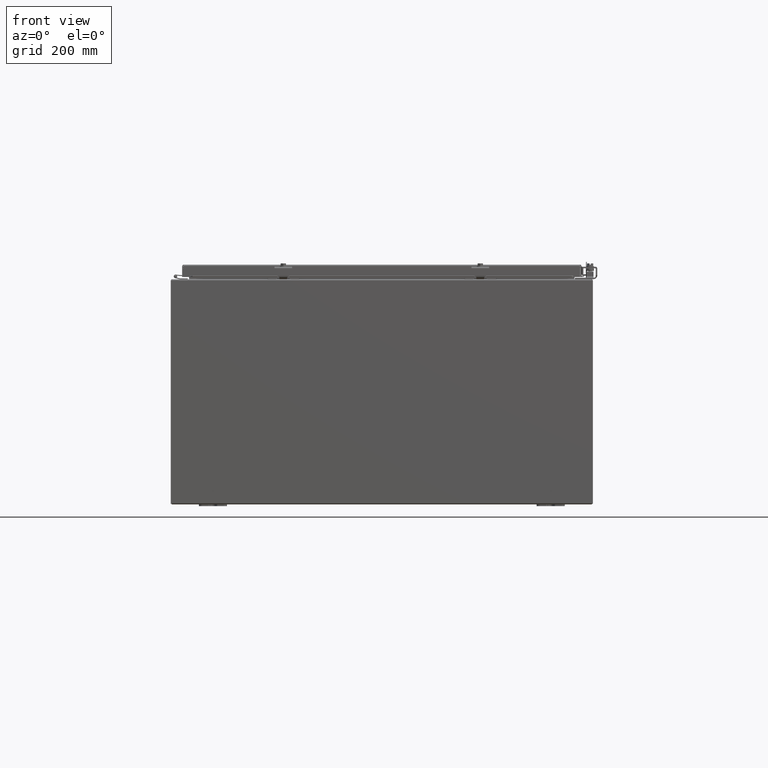
[diagram: clean part render]
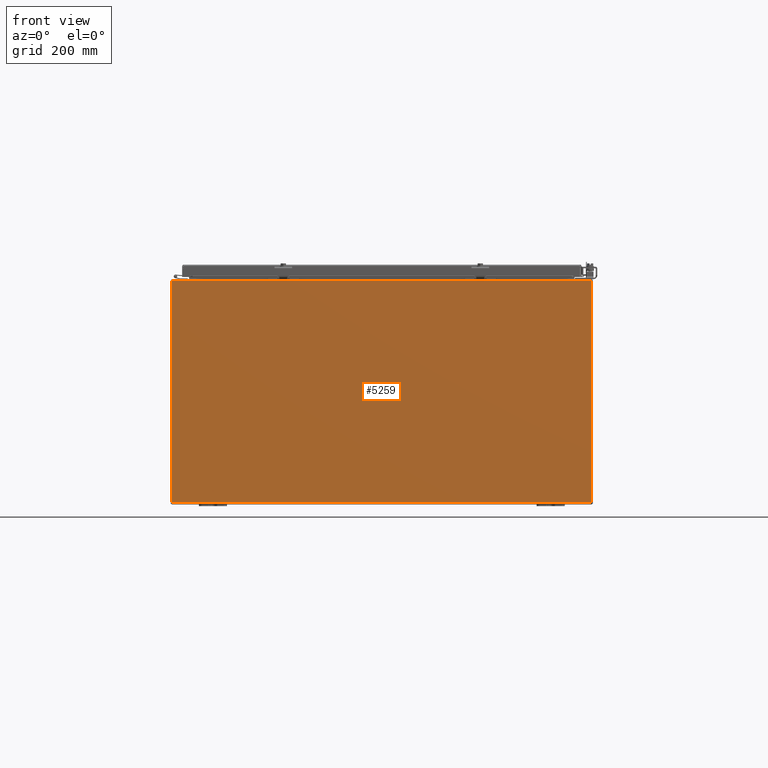
[diagram: same view with one face highlighted and labeled with its STEP entity id]
A machine part, front view. The second image highlights one B-rep face of the part: STEP entity #5259.
In plain terms, the highlighted planar face has unit normal (0, 1, 0).
Its self-contained STEP definition (entity closure, byte-faithful):
#4594=CARTESIAN_POINT('',(6.180097E-032,-6.800958E-016,15.894750000000004));
#4595=VERTEX_POINT('',#4594);
#4794=CARTESIAN_POINT('',(29.852,-6.800958E-016,15.894750000000004));
#4795=VERTEX_POINT('',#4794);
#4796=CARTESIAN_POINT('',(29.852,-6.800958E-016,15.894750000000004));
#4797=DIRECTION('',(-1.0,0.0,0.0));
#4798=VECTOR('',#4797,29.852);
#4799=LINE('',#4796,#4798);
#4800=EDGE_CURVE('',#4795,#4595,#4799,.T.);
#4978=CARTESIAN_POINT('',(-1.277290E-034,1.562617E-015,0.10525));
#4979=VERTEX_POINT('',#4978);
#4986=CARTESIAN_POINT('',(-1.277290E-034,1.562617E-015,0.10525));
#4987=DIRECTION('',(0.0,0.0,1.0));
#4988=VECTOR('',#4987,15.789500000000002);
#4989=LINE('',#4986,#4988);
#4990=EDGE_CURVE('',#4979,#4595,#4989,.T.);
#5025=CARTESIAN_POINT('',(29.852,1.560591E-015,0.10525));
#5026=VERTEX_POINT('',#5025);
#5027=CARTESIAN_POINT('',(29.852,2.705552E-016,15.894750000000004));
#5028=DIRECTION('',(0.0,0.0,-1.0));
#5029=VECTOR('',#5028,15.789500000000004);
#5030=LINE('',#5027,#5029);
#5031=EDGE_CURVE('',#4795,#5026,#5030,.T.);
#5165=CARTESIAN_POINT('',(0.0,1.573544E-015,0.10525));
#5166=DIRECTION('',(1.0,0.0,0.0));
#5167=VECTOR('',#5166,29.851999999999997);
#5168=LINE('',#5165,#5167);
#5169=EDGE_CURVE('',#4979,#5026,#5168,.T.);
#5248=CARTESIAN_POINT('',(14.925999999999997,-8.365576E-014,-17.862183887633456));
#5249=DIRECTION('',(0.0,1.0,0.0));
#5250=DIRECTION('',(1.0,0.0,0.0));
#5251=AXIS2_PLACEMENT_3D('',#5248,#5249,#5250);
#5252=PLANE('',#5251);
#5253=ORIENTED_EDGE('',*,*,#4800,.T.);
#5254=ORIENTED_EDGE('',*,*,#4990,.F.);
#5255=ORIENTED_EDGE('',*,*,#5169,.T.);
#5256=ORIENTED_EDGE('',*,*,#5031,.F.);
#5257=EDGE_LOOP('',(#5253,#5254,#5255,#5256));
#5258=FACE_OUTER_BOUND('',#5257,.T.);
#5259=ADVANCED_FACE('',(#5258),#5252,.F.);